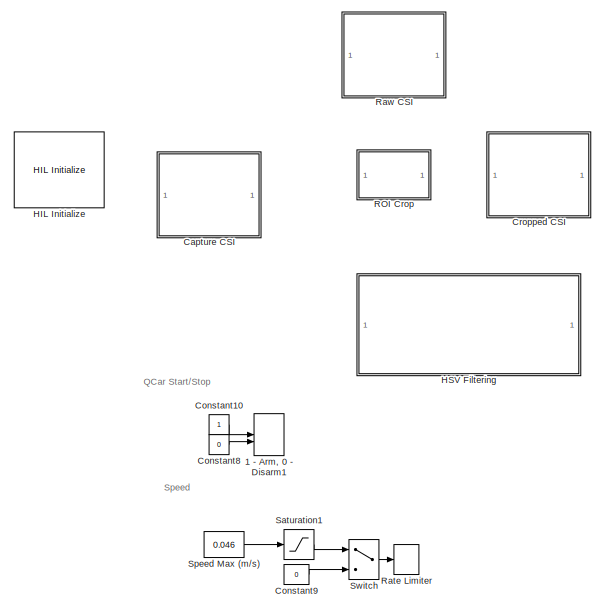
[diagram: root canvas - part 1/2, left side, full height]
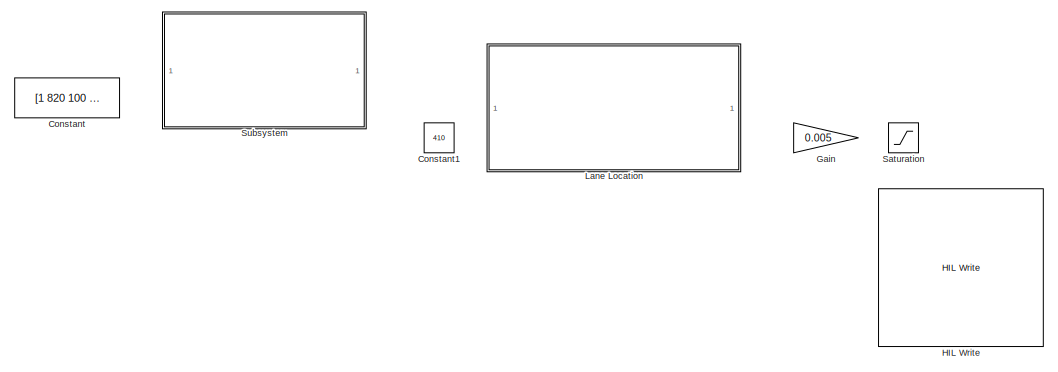
[diagram: root canvas - part 2/2, bottom right region]
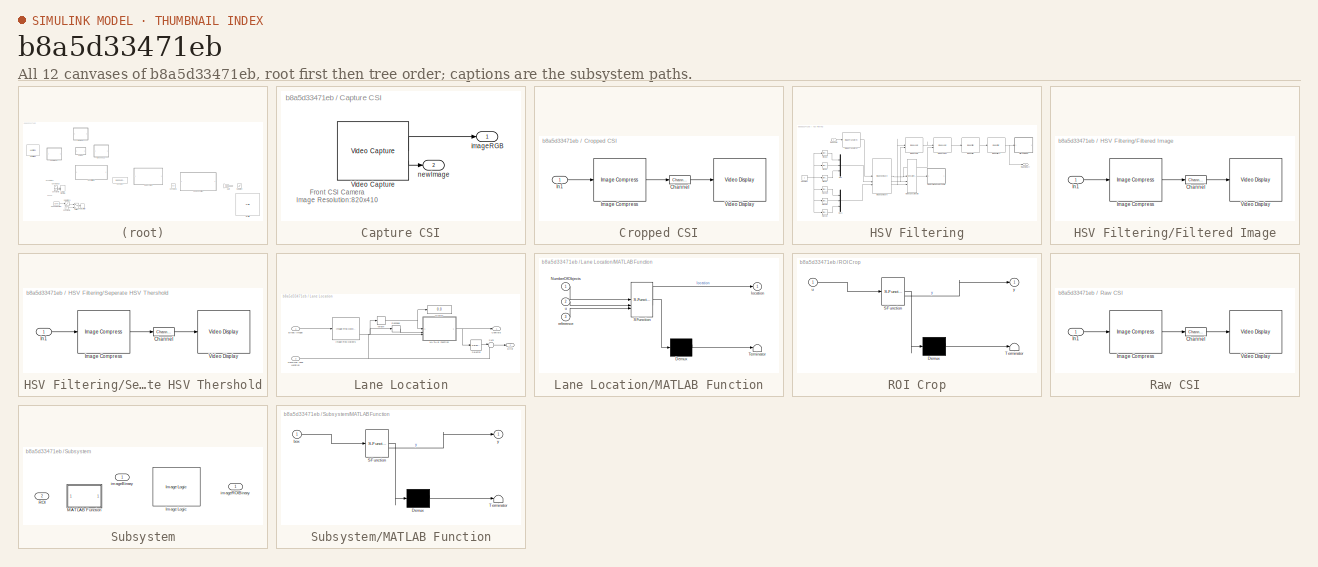
[diagram: thumbnail index - all 12 canvases of the model, root first then tree order]
MODEL slx_b8a5d33471eb
KIND model
CONFIG AbsTol = auto
CONFIG EnableMultiTasking = on
CONFIG FixedStep = 0.002
CONFIG MaxStep = auto
CONFIG MinStep = auto
CONFIG RelTol = 1e-3
CONFIG SampleTimeConstraint = Unconstrained
CONFIG SolverName = FixedStepDiscrete
CONFIG StartTime = 0.0
CONFIG StopTime = inf
BLOCK [ManualSwitch] 1 - Arm, 0 - Disarm1
  CurrentSetting = 0
  NameLocation = top
BLOCK [SubSystem] Capture CSI
BLOCK [Reference] Capture CSI/Video Capture  REF=quarc_library/Multimedia/Video Capture
  SourceBlock = quarc_library/Multimedia/Video Capture
  SourceProductName = QUARC Targets
  SourceType = Video Capture
BLOCK [Outport] Capture CSI/imageRGB
BLOCK [Outport] Capture CSI/newImage
  Port = 2
BLOCK [Constant] Constant
  Value = [1 820 100 180]
BLOCK [Constant] Constant1
  Value = 410
BLOCK [Constant] Constant10
BLOCK [Constant] Constant8
  Value = 0
BLOCK [Constant] Constant9
  Value = 0
BLOCK [SubSystem] Cropped CSI
  CopyFcn = set_param(gcbh, 'UserData', gcb);\nset_param(gcbh, 'LinkStatus', 'none');
  LoadFcn = set_param(gcbh, 'UserData', gcb);
  NameChangeFcn = video_display_show([get_param(gcbh, 'UserData'), '/Video Display'], 'rename', [gcb, '/Video Display']);\nvideo_display_show([gcb, '/Video Display'], 'add', gcb);\nset_param(gcbh, 'UserData', gcb);  <repeated x4 — deduplicated; at blocks: Cropped CSI, Filtered Image, Seperate HSV Thershold, Raw CSI>
  OpenFcn = video_display_show([gcb, '/Video Display'], 'show', gcb);
  PreDeleteFcn = video_display_show([gcb, '/Video Display'], 'delete');
  StartFcn = video_display_show([gcb, '/Video Display'], 'add', gcb);
  UndoDeleteFcn = set_param(gcbh, 'UserData', gcb);
BLOCK [Reference] Cropped CSI/Channel  REF=quarc_library/Signal Routing/Channel
  SourceBlock = quarc_library/Signal Routing/Channel
  SourceProductName = QUARC Targets
  SourceType = Channel
BLOCK [Reference] Cropped CSI/Image Compress  REF=quarc_library/Image Processing/Generic/Image Compress
  AttributesFormatString = (%<algorithm>)
  SourceBlock = quarc_library/Image Processing/Generic/Image Compress
  SourceProductName = QUARC Targets
  SourceType = Image Compress
BLOCK [Inport] Cropped CSI/In1
BLOCK [Reference] Cropped CSI/Video Display  REF=quarc_library/Multimedia/Video Display
  SourceBlock = quarc_library/Multimedia/Video Display
  SourceProductName = QUARC Targets
  SourceType = Video Display
  Tag = Copy_of_Ex9_Lane_Keep_Assist/Cropped CSI/Video Display
  UserDataPersistent = on
BLOCK [Gain] Gain
  Gain = 0.005
BLOCK [Reference] HIL Initialize  REF=quarc_library/Data Acquisition/Generic/Configuration/HIL Initialize
  AttributesFormatString = %<object_name> (%<board_type>-%<board_number>)
  SourceBlock = quarc_library/Data Acquisition/Generic/Configuration/HIL Initialize
  SourceProductName = QUARC Targets
  SourceType = HIL Initialize
  UserDataPersistent = on
BLOCK [Reference] HIL Write  REF=quarc_library/Data Acquisition/Generic/Immediate I//O/HIL Write
  AttributesFormatString = (%<object_name>)
  SourceBlock = quarc_library/Data Acquisition/Generic/Immediate I//O/HIL Write
  SourceProductName = QUARC Targets
  SourceType = HIL Write
  UserDataPersistent = on
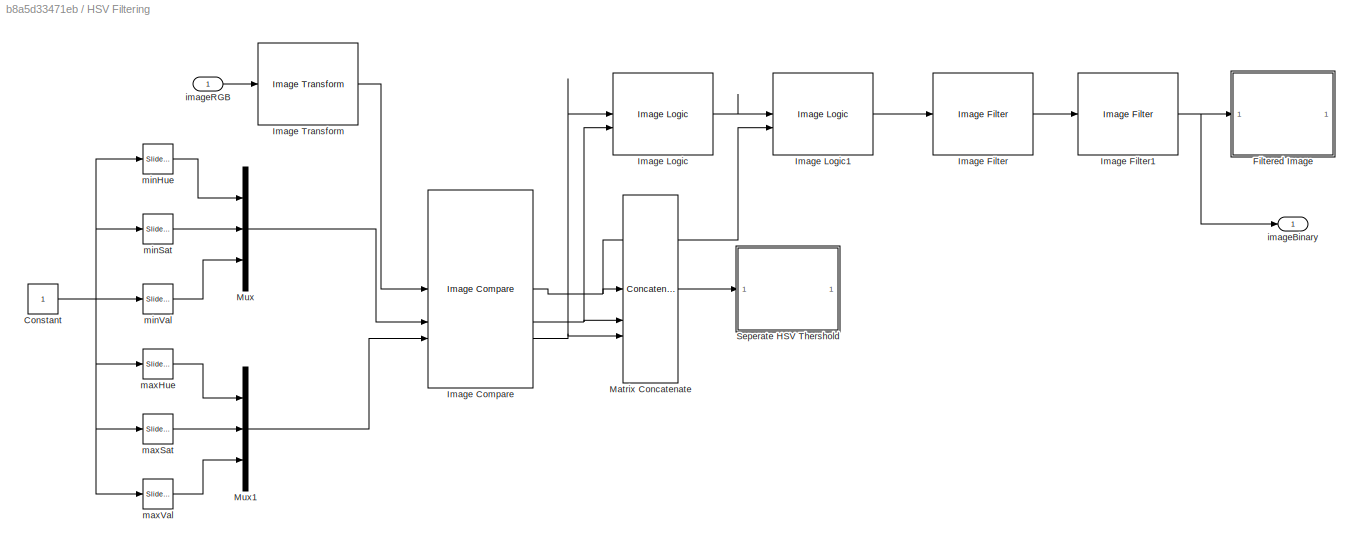
BLOCK [SubSystem] HSV Filtering
BLOCK [Constant] HSV Filtering/Constant
BLOCK [SubSystem] HSV Filtering/Filtered Image
  CopyFcn = set_param(gcbh, 'UserData', gcb);\nset_param(gcbh, 'LinkStatus', 'none');
  LoadFcn = set_param(gcbh, 'UserData', gcb);
  OpenFcn = video_display_show([gcb, '/Video Display'], 'show', gcb);
  PreDeleteFcn = video_display_show([gcb, '/Video Display'], 'delete');
  StartFcn = video_display_show([gcb, '/Video Display'], 'add', gcb);
  UndoDeleteFcn = set_param(gcbh, 'UserData', gcb);
BLOCK [Reference] HSV Filtering/Filtered Image/Channel  REF=quarc_library/Signal Routing/Channel
  SourceBlock = quarc_library/Signal Routing/Channel
  SourceProductName = QUARC Targets
  SourceType = Channel
BLOCK [Reference] HSV Filtering/Filtered Image/Image Compress  REF=quarc_library/Image Processing/Generic/Image Compress
  AttributesFormatString = (%<algorithm>)
  SourceBlock = quarc_library/Image Processing/Generic/Image Compress
  SourceProductName = QUARC Targets
  SourceType = Image Compress
BLOCK [Inport] HSV Filtering/Filtered Image/In1
BLOCK [Reference] HSV Filtering/Filtered Image/Video Display  REF=quarc_library/Multimedia/Video Display
  SourceBlock = quarc_library/Multimedia/Video Display
  SourceProductName = QUARC Targets
  SourceType = Video Display
  Tag = Copy_of_Ex9_Lane_Keep_Assist/HSV Filtering/Filtered Image/Video Display
  UserDataPersistent = on
BLOCK [Reference] HSV Filtering/Image Compare  REF=quarc_library/Image Processing/Generic/Image Compare
  SourceBlock = quarc_library/Image Processing/Generic/Image Compare
  SourceProductName = QUARC Targets
  SourceType = Image Compare
BLOCK [Reference] HSV Filtering/Image Filter  REF=quarc_library/Image Processing/Generic/Image Filter
  AttributesFormatString = (%<filter_type>)
  SourceBlock = quarc_library/Image Processing/Generic/Image Filter
  SourceProductName = QUARC Targets
  SourceType = Image Filter
BLOCK [Reference] HSV Filtering/Image Filter1  REF=quarc_library/Image Processing/Generic/Image Filter
  AttributesFormatString = (%<filter_type>)
  SourceBlock = quarc_library/Image Processing/Generic/Image Filter
  SourceProductName = QUARC Targets
  SourceType = Image Filter
BLOCK [Reference] HSV Filtering/Image Logic  REF=quarc_library/Image Processing/Generic/Image Logic
  AttributesFormatString = (%<algorithm>)
  SourceBlock = quarc_library/Image Processing/Generic/Image Logic
  SourceProductName = QUARC Targets
  SourceType = Image Logic
BLOCK [Reference] HSV Filtering/Image Logic1  REF=quarc_library/Image Processing/Generic/Image Logic
  AttributesFormatString = (%<algorithm>)
  SourceBlock = quarc_library/Image Processing/Generic/Image Logic
  SourceProductName = QUARC Targets
  SourceType = Image Logic
BLOCK [Reference] HSV Filtering/Image Transform  REF=quarc_library/Image Processing/Generic/Image Transform
  AttributesFormatString = (%<algorithm>)
  SourceBlock = quarc_library/Image Processing/Generic/Image Transform
  SourceProductName = QUARC Targets
  SourceType = Image Transform
BLOCK [Concatenate] HSV Filtering/Matrix Concatenate
  ConcatenateDimension = 2
  Mode = Multidimensional array
  NumInputs = 3
BLOCK [Mux] HSV Filtering/Mux
  DisplayOption = bar
  Inputs = 3
BLOCK [Mux] HSV Filtering/Mux1
  DisplayOption = bar
  Inputs = 3
BLOCK [SubSystem] HSV Filtering/Seperate HSV Thershold
  CopyFcn = set_param(gcbh, 'UserData', gcb);\nset_param(gcbh, 'LinkStatus', 'none');
  LoadFcn = set_param(gcbh, 'UserData', gcb);
  OpenFcn = video_display_show([gcb, '/Video Display'], 'show', gcb);
  PreDeleteFcn = video_display_show([gcb, '/Video Display'], 'delete');
  StartFcn = video_display_show([gcb, '/Video Display'], 'add', gcb);
  UndoDeleteFcn = set_param(gcbh, 'UserData', gcb);
BLOCK [Reference] HSV Filtering/Seperate HSV Thershold/Channel  REF=quarc_library/Signal Routing/Channel
  SourceBlock = quarc_library/Signal Routing/Channel
  SourceProductName = QUARC Targets
  SourceType = Channel
BLOCK [Reference] HSV Filtering/Seperate HSV Thershold/Image Compress  REF=quarc_library/Image Processing/Generic/Image Compress
  AttributesFormatString = (%<algorithm>)
  SourceBlock = quarc_library/Image Processing/Generic/Image Compress
  SourceProductName = QUARC Targets
  SourceType = Image Compress
BLOCK [Inport] HSV Filtering/Seperate HSV Thershold/In1
BLOCK [Reference] HSV Filtering/Seperate HSV Thershold/Video Display  REF=quarc_library/Multimedia/Video Display
  SourceBlock = quarc_library/Multimedia/Video Display
  SourceProductName = QUARC Targets
  SourceType = Video Display
  Tag = Copy_of_Ex9_Lane_Keep_Assist/HSV Filtering/Seperate HSV Thershold/Video Display
  UserDataPersistent = on
BLOCK [Outport] HSV Filtering/imageBinary
BLOCK [Inport] HSV Filtering/imageRGB
BLOCK [Reference] HSV Filtering/maxHue  REF=simulink/Math
Operations/Slider
Gain
  SourceBlock = simulink/Math\nOperations/Slider\nGain
  SourceType = Slider Gain
BLOCK [Reference] HSV Filtering/maxSat  REF=simulink/Math
Operations/Slider
Gain
  SourceBlock = simulink/Math\nOperations/Slider\nGain
  SourceType = Slider Gain
BLOCK [Reference] HSV Filtering/maxVal  REF=simulink/Math
Operations/Slider
Gain
  SourceBlock = simulink/Math\nOperations/Slider\nGain
  SourceType = Slider Gain
BLOCK [Reference] HSV Filtering/minHue  REF=simulink/Math
Operations/Slider
Gain
  SourceBlock = simulink/Math\nOperations/Slider\nGain
  SourceType = Slider Gain
BLOCK [Reference] HSV Filtering/minSat  REF=simulink/Math
Operations/Slider
Gain
  SourceBlock = simulink/Math\nOperations/Slider\nGain
  SourceType = Slider Gain
BLOCK [Reference] HSV Filtering/minVal  REF=simulink/Math
Operations/Slider
Gain
  SourceBlock = simulink/Math\nOperations/Slider\nGain
  SourceType = Slider Gain
BLOCK [SubSystem] Lane Location
BLOCK [Inport] Lane Location/Binary Image
BLOCK [Outport] Lane Location/Centroid
  VectorParamsAs1DForOutWhenUnconnected = off
BLOCK [Display] Lane Location/Display
  Decimation = 1
BLOCK [Outport] Lane Location/Error
  Port = 2
  VectorParamsAs1DForOutWhenUnconnected = off
BLOCK [Reference] Lane Location/Image Find Objects  REF=quarc_library/Image Processing/Generic/Image Find Objects
  SourceBlock = quarc_library/Image Processing/Generic/Image Find Objects
  SourceProductName = QUARC Targets
  SourceType = Image Find Objects
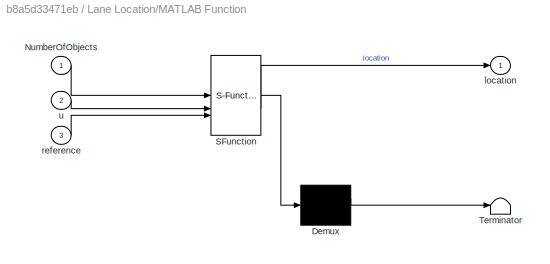
BLOCK [SubSystem] Lane Location/MATLAB Function
  ErrorFcn = Stateflow.Translate.translate
  PermitHierarchicalResolution = ExplicitOnly
  SFBlockType = MATLAB Function
  TreatAsAtomicUnit = on
BLOCK [Demux] Lane Location/MATLAB Function/ Demux 
  Outputs = 1
BLOCK [S-Function] Lane Location/MATLAB Function/ SFunction 
  EnableBusSupport = on
  FunctionName = sf_sfun
  PortCounts = [3 2]
  SFcnIsStateOwnerBlock = off
  SFunctionDeploymentMode = off
  Tag = Stateflow S-Function 19
BLOCK [Terminator] Lane Location/MATLAB Function/ Terminator 
BLOCK [Inport] Lane Location/MATLAB Function/NumberOfObjects
BLOCK [Outport] Lane Location/MATLAB Function/location
  VectorParamsAs1DForOutWhenUnconnected = off
BLOCK [Inport] Lane Location/MATLAB Function/reference
  Port = 3
BLOCK [Inport] Lane Location/MATLAB Function/u
  Port = 2
BLOCK [Inport] Lane Location/Nomimal Lane Location
  Port = 2
BLOCK [Reshape] Lane Location/Reshape
BLOCK [Selector] Lane Location/Selector
  IndexOptions = Index vector (dialog)
  Indices = [2]
  InputPortWidth = 2
  OutputSizes = 1
BLOCK [Sum] Lane Location/Sum
  Inputs = |-+
BLOCK [Width] Lane Location/Width
BLOCK [SubSystem] ROI Crop
  ErrorFcn = Stateflow.Translate.translate
  PermitHierarchicalResolution = ExplicitOnly
  SFBlockType = MATLAB Function
  TreatAsAtomicUnit = on
BLOCK [Demux] ROI Crop/ Demux 
  Outputs = 1
BLOCK [S-Function] ROI Crop/ SFunction 
  EnableBusSupport = on
  FunctionName = sf_sfun
  PortCounts = [1 2]
  SFcnIsStateOwnerBlock = off
  SFunctionDeploymentMode = off
  Tag = Stateflow S-Function 2
BLOCK [Terminator] ROI Crop/ Terminator 
BLOCK [Inport] ROI Crop/u
BLOCK [Outport] ROI Crop/y
BLOCK [RateLimiter] Rate Limiter
  FallingSlewLimit = -Inf
  SampleTimeMode = inherited
BLOCK [SubSystem] Raw CSI
  CopyFcn = set_param(gcbh, 'UserData', gcb);\nset_param(gcbh, 'LinkStatus', 'none');
  LoadFcn = set_param(gcbh, 'UserData', gcb);
  OpenFcn = video_display_show([gcb, '/Video Display'], 'show', gcb);
  PreDeleteFcn = video_display_show([gcb, '/Video Display'], 'delete');
  StartFcn = video_display_show([gcb, '/Video Display'], 'add', gcb);
  UndoDeleteFcn = set_param(gcbh, 'UserData', gcb);
BLOCK [Reference] Raw CSI/Channel  REF=quarc_library/Signal Routing/Channel
  SourceBlock = quarc_library/Signal Routing/Channel
  SourceProductName = QUARC Targets
  SourceType = Channel
BLOCK [Reference] Raw CSI/Image Compress  REF=quarc_library/Image Processing/Generic/Image Compress
  AttributesFormatString = (%<algorithm>)
  SourceBlock = quarc_library/Image Processing/Generic/Image Compress
  SourceProductName = QUARC Targets
  SourceType = Image Compress
BLOCK [Inport] Raw CSI/In1
BLOCK [Reference] Raw CSI/Video Display  REF=quarc_library/Multimedia/Video Display
  SourceBlock = quarc_library/Multimedia/Video Display
  SourceProductName = QUARC Targets
  SourceType = Video Display
  Tag = Copy_of_Ex9_Lane_Keep_Assist/Raw CSI/Video Display
  UserDataPersistent = on
BLOCK [Saturate] Saturation
BLOCK [Saturate] Saturation1
  LowerLimit = 0
  UpperLimit = 1
BLOCK [Constant] Speed Max (m//s)
  Value = 0.046
BLOCK [SubSystem] Subsystem
BLOCK [Reference] Subsystem/Image Logic  REF=quarc_library/Image Processing/Generic/Image Logic
  AttributesFormatString = (%<algorithm>)
  SourceBlock = quarc_library/Image Processing/Generic/Image Logic
  SourceProductName = QUARC Targets
  SourceType = Image Logic
BLOCK [SubSystem] Subsystem/MATLAB Function
  ErrorFcn = Stateflow.Translate.translate
  PermitHierarchicalResolution = ExplicitOnly
  SFBlockType = MATLAB Function
  TreatAsAtomicUnit = on
BLOCK [Demux] Subsystem/MATLAB Function/ Demux 
  Outputs = 1
BLOCK [S-Function] Subsystem/MATLAB Function/ SFunction 
  EnableBusSupport = on
  FunctionName = sf_sfun
  PortCounts = [1 2]
  SFcnIsStateOwnerBlock = off
  SFunctionDeploymentMode = off
  Tag = Stateflow S-Function 1
BLOCK [Terminator] Subsystem/MATLAB Function/ Terminator 
BLOCK [Inport] Subsystem/MATLAB Function/box
BLOCK [Outport] Subsystem/MATLAB Function/y
BLOCK [Inport] Subsystem/ROI
  Port = 2
BLOCK [Inport] Subsystem/imageBinary
BLOCK [Outport] Subsystem/imageROIBinary
BLOCK [Switch] Switch
  Criteria = u2 > Threshold
  InputSameDT = off
  SaturateOnIntegerOverflow = off
ANNOTATION (root): QCar Start/Stop
ANNOTATION (root): Speed
ANNOTATION Capture CSI: Front CSI Camera Image Resolution:820x410
LINE Capture CSI/Video Capture:1 -> Capture CSI/imageRGB:1
LINE Capture CSI/Video Capture:2 -> Capture CSI/newImage:1
LINE Constant10:1 -> 1 - Arm, 0 - Disarm1:1
LINE Constant8:1 -> 1 - Arm, 0 - Disarm1:2
LINE Constant9:1 -> Switch:3
NET HSV Filtering/Constant:1 -> HSV Filtering/maxHue:1, HSV Filtering/maxSat:1, HSV Filtering/maxVal:1, HSV Filtering/minHue:1, HSV Filtering/minSat:1, HSV Filtering/minVal:1
NET HSV Filtering/Image Compare:1 -> HSV Filtering/Image Logic1:2, HSV Filtering/Matrix Concatenate:1
NET HSV Filtering/Image Compare:2 -> HSV Filtering/Image Logic:2, HSV Filtering/Matrix Concatenate:2
NET HSV Filtering/Image Compare:3 -> HSV Filtering/Image Logic:1, HSV Filtering/Matrix Concatenate:3
NET HSV Filtering/Image Filter1:1 -> HSV Filtering/Filtered Image:1, HSV Filtering/imageBinary:1
LINE HSV Filtering/Image Filter:1 -> HSV Filtering/Image Filter1:1
LINE HSV Filtering/Image Logic1:1 -> HSV Filtering/Image Filter:1
LINE HSV Filtering/Image Logic:1 -> HSV Filtering/Image Logic1:1
LINE HSV Filtering/Image Transform:1 -> HSV Filtering/Image Compare:1
LINE HSV Filtering/Matrix Concatenate:1 -> HSV Filtering/Seperate HSV Thershold:1
LINE HSV Filtering/Mux1:1 -> HSV Filtering/Image Compare:3
LINE HSV Filtering/Mux:1 -> HSV Filtering/Image Compare:2
LINE HSV Filtering/imageRGB:1 -> HSV Filtering/Image Transform:1
LINE HSV Filtering/maxHue:1 -> HSV Filtering/Mux1:1
LINE HSV Filtering/maxSat:1 -> HSV Filtering/Mux1:2
LINE HSV Filtering/maxVal:1 -> HSV Filtering/Mux1:3
LINE HSV Filtering/minHue:1 -> HSV Filtering/Mux:1
LINE HSV Filtering/minSat:1 -> HSV Filtering/Mux:2
LINE HSV Filtering/minVal:1 -> HSV Filtering/Mux:3
LINE Lane Location/Binary Image:1 -> Lane Location/Image Find Objects:1
NET Lane Location/Image Find Objects:3 -> Lane Location/Reshape:1, Lane Location/Width:1
NET Lane Location/MATLAB Function:1 -> Lane Location/Centroid:1, Lane Location/Selector:1
NET Lane Location/Nomimal Lane Location:1 -> Lane Location/MATLAB Function:3, Lane Location/Sum:2
LINE Lane Location/Reshape:1 -> Lane Location/MATLAB Function:2
LINE Lane Location/Selector:1 -> Lane Location/Sum:1
LINE Lane Location/Sum:1 -> Lane Location/Error:1
NET Lane Location/Width:1 -> Lane Location/Display:1, Lane Location/MATLAB Function:1
LINE Saturation1:1 -> Switch:1
LINE Speed Max (m//s):1 -> Saturation1:1
LINE Switch:1 -> Rate Limiter:1
note: NET lines group one-source signal fan-out (src -> all destinations, sorted); 1:1 wires keep LINE
CHART Subsystem/MATLAB Function states=1 transitions=1
  STATE_LABEL 'eML_blk_kernel()'
  STATE_LABEL 'SCRIPT:\nfunction y = fcn(box)\n\nx_min = box(1);\nx_max = box(2);\ny_min = box(3);\ny_max = box(4);\n\ny = uint8(zeros(200, 820));\n\ny(y_min:y_max, x_min:x_max) = uint8(255);\n'
CHART ROI Crop states=1 transitions=1
  STATE_LABEL 'eML_blk_kernel()'
  STATE_LABEL 'SCRIPT:\nfunction y = fcn(u)\n\ny = u(211:410,:,:);\n'
CHART Lane Location/MATLAB Function states=1 transitions=1
  STATE_LABEL 'eML_blk_kernel()'
  STATE_LABEL 'SCRIPT:\nfunction location  = fcn(NumberOfObjects, u, reference)\n\n\npersistent last_location;\n\nlocation = single([0 0]);\n\nif isempty(last_location)\n    last_location = single([reference 0]);\nend\n\nif NumberOfObjects > 0\n    last_location = [u(1) u(2)];\nend\n\nlocation = last_location;\n'
CHART  states=0 transitions=0
CHART  states=0 transitions=0
CHART  states=0 transitions=0
